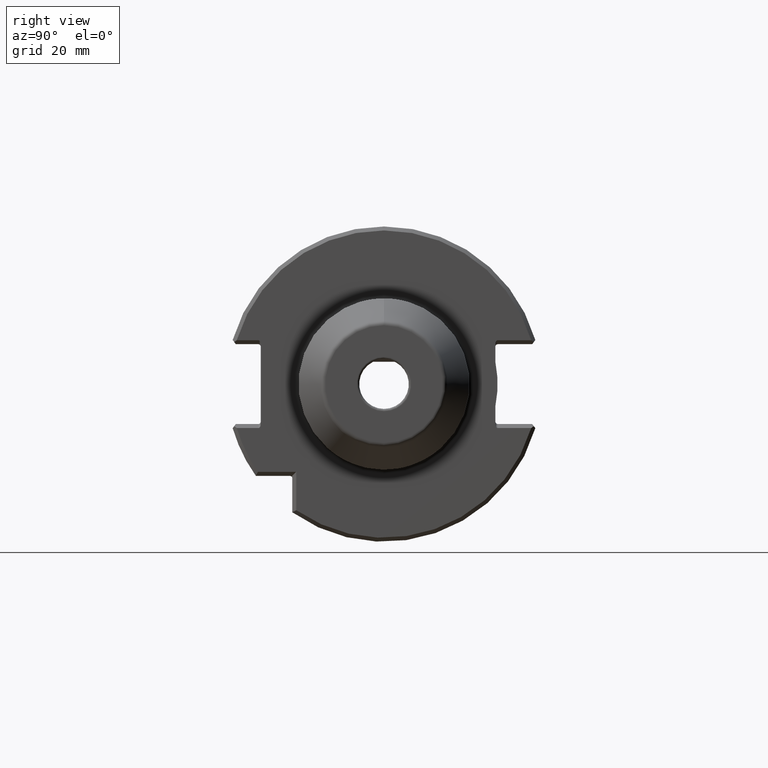
[diagram: clean part render]
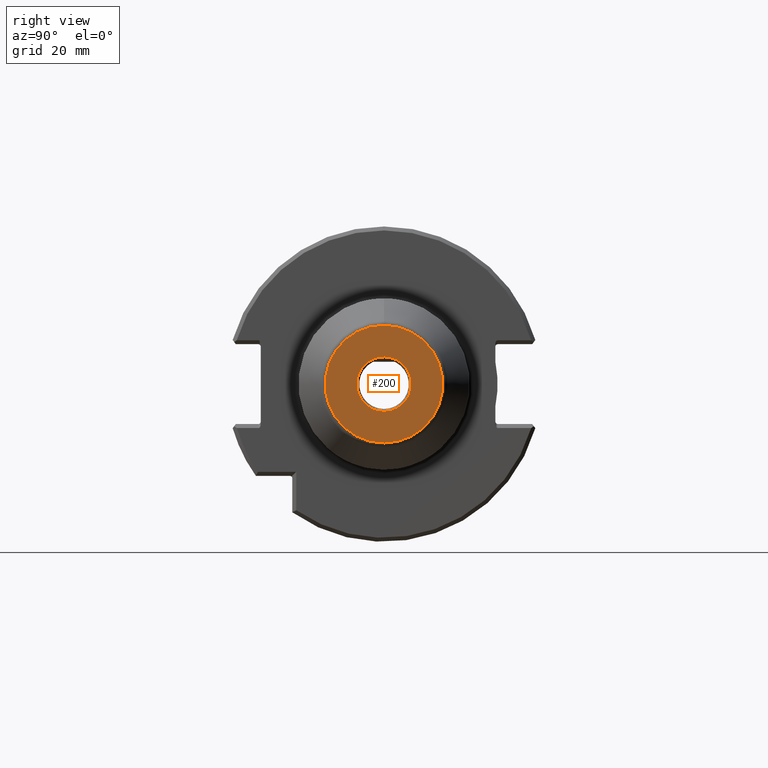
[diagram: same view with one face highlighted and labeled with its STEP entity id]
A machine part, right view. The second image highlights one B-rep face of the part: STEP entity #200.
In plain terms, the highlighted planar face has unit normal (-1, 0, 0).
Its self-contained STEP definition (entity closure, byte-faithful):
#200 = ADVANCED_FACE( '', ( #503, #504 ), #505, .F. );
#503 = FACE_BOUND( '', #935, .T. );
#504 = FACE_OUTER_BOUND( '', #936, .T. );
#505 = PLANE( '', #937 );
#935 = EDGE_LOOP( '', ( #1467 ) );
#936 = EDGE_LOOP( '', ( #1468 ) );
#937 = AXIS2_PLACEMENT_3D( '', #1469, #1470, #1471 );
#1467 = ORIENTED_EDGE( '', *, *, #2471, .T. );
#1468 = ORIENTED_EDGE( '', *, *, #2472, .F. );
#1469 = CARTESIAN_POINT( '', ( 50.0000000000000, 0.000000000000000, 6.93889390390723E-015 ) );
#1470 = DIRECTION( '', ( -1.00000000000000, 0.000000000000000, 0.000000000000000 ) );
#1471 = DIRECTION( '', ( 0.000000000000000, 0.000000000000000, 1.00000000000000 ) );
#2471 = EDGE_CURVE( '', #2963, #2963, #2964, .T. );
#2472 = EDGE_CURVE( '', #2965, #2965, #2966, .T. );
#2963 = VERTEX_POINT( '', #3672 );
#2964 = CIRCLE( '', #3673, 5.50000000000000 );
#2965 = VERTEX_POINT( '', #3674 );
#2966 = CIRCLE( '', #3675, 11.8629297391925 );
#3672 = CARTESIAN_POINT( '', ( 50.0000000000000, 0.000000000000000, 5.50000000000001 ) );
#3673 = AXIS2_PLACEMENT_3D( '', #4586, #4587, #4588 );
#3674 = CARTESIAN_POINT( '', ( 50.0000000000000, 0.000000000000000, 11.8629297391925 ) );
#3675 = AXIS2_PLACEMENT_3D( '', #4589, #4590, #4591 );
#4586 = CARTESIAN_POINT( '', ( 50.0000000000000, 0.000000000000000, 6.93889390390723E-015 ) );
#4587 = DIRECTION( '', ( -1.00000000000000, 0.000000000000000, 0.000000000000000 ) );
#4588 = DIRECTION( '', ( 0.000000000000000, 0.000000000000000, 1.00000000000000 ) );
#4589 = CARTESIAN_POINT( '', ( 50.0000000000000, 0.000000000000000, 6.93889390390723E-015 ) );
#4590 = DIRECTION( '', ( -1.00000000000000, 0.000000000000000, 0.000000000000000 ) );
#4591 = DIRECTION( '', ( 0.000000000000000, 0.000000000000000, 1.00000000000000 ) );